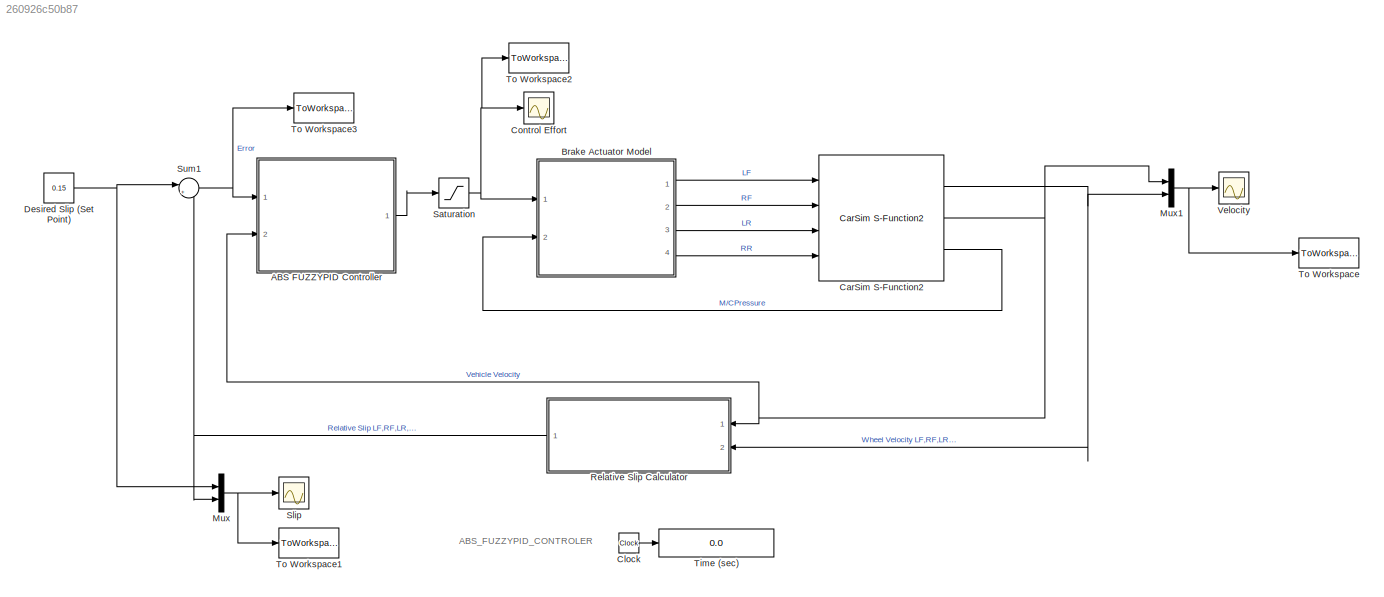
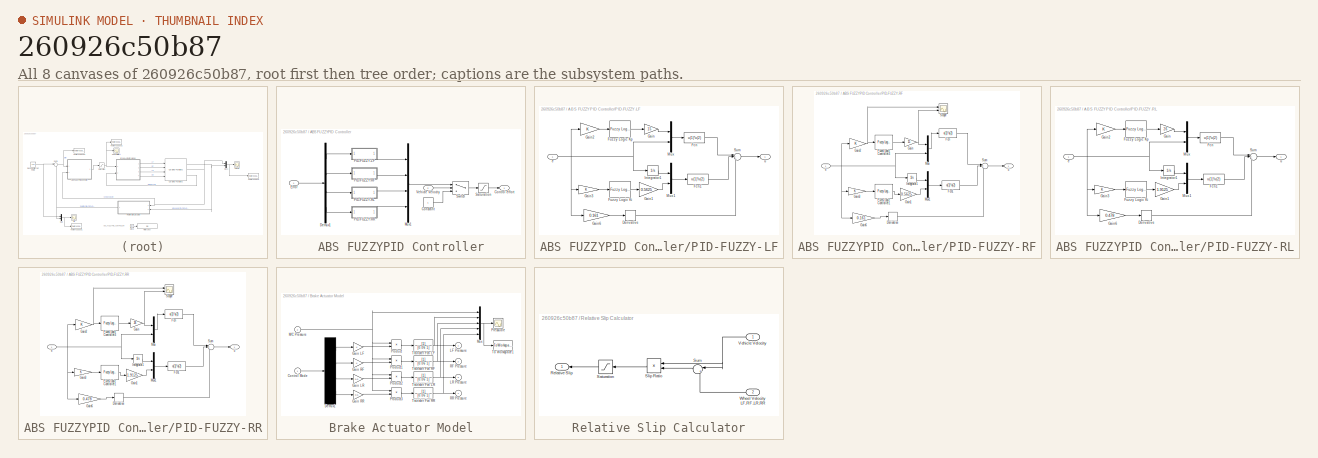
[diagram: thumbnail index - all 8 canvases of the model, root first then tree order]
MODEL slx_260926c50b87
KIND model
BLOCK [SubSystem] ABS FUZZYPID Controller
  Ports = [2, 1]
  RequestExecContextInheritance = off
BLOCK [Constant] ABS FUZZYPID Controller/Constant
BLOCK [Outport] ABS FUZZYPID Controller/Control effort
  IconDisplay = Port number
BLOCK [Demux] ABS FUZZYPID Controller/Demux1
  Ports = [1, 4]
BLOCK [Inport] ABS FUZZYPID Controller/Error
  IconDisplay = Port number
BLOCK [Mux] ABS FUZZYPID Controller/Mux1
  DisplayOption = bar
  Ports = [4, 1]
BLOCK [SubSystem] ABS FUZZYPID Controller/PID-FUZZY-LF
  Ports = [1, 1]
  RequestExecContextInheritance = off
BLOCK [Derivative] ABS FUZZYPID Controller/PID-FUZZY-LF/Derivative
BLOCK [Fcn] ABS FUZZYPID Controller/PID-FUZZY-LF/Fcn
  Expr = u(1)*u(2)
BLOCK [Fcn] ABS FUZZYPID Controller/PID-FUZZY-LF/Fcn1
  Expr = u(1)*u(2)
BLOCK [Reference] ABS FUZZYPID Controller/PID-FUZZY-LF/Fuzzy Logic  Ki  REF=fuzblock/Fuzzy Logic   (lib defined in mdl_858b3b3e7478)
Controller
  Ports = [1, 1]
  SourceBlock = fuzblock/Fuzzy Logic \nController
  SourceType = FIS
  fis = 'ABS_FUZZY-LOGIC-0.15.fis'
BLOCK [Reference] ABS FUZZYPID Controller/PID-FUZZY-LF/Fuzzy Logic  Kp  REF=fuzblock/Fuzzy Logic   (lib defined in mdl_858b3b3e7478)
Controller
  Ports = [1, 1]
  SourceBlock = fuzblock/Fuzzy Logic \nController
  SourceType = FIS
  fis = 'ABS_FUZZY-LOGIC-0.15.fis'
BLOCK [Gain] ABS FUZZYPID Controller/PID-FUZZY-LF/Gain
  Gain = 15
  OutDataTypeStr = Inherit: Inherit via internal rule
  ParamDataTypeStr = Inherit: Inherit via internal rule
  SaturateOnIntegerOverflow = off
BLOCK [Gain] ABS FUZZYPID Controller/PID-FUZZY-LF/Gain1
  Gain = 0.5625
  OutDataTypeStr = Inherit: Inherit via internal rule
  ParamDataTypeStr = Inherit: Inherit via internal rule
  SaturateOnIntegerOverflow = off
BLOCK [Gain] ABS FUZZYPID Controller/PID-FUZZY-LF/Gain2
  OutDataTypeStr = Inherit: Inherit via internal rule
  ParamDataTypeStr = Inherit: Inherit via internal rule
  SaturateOnIntegerOverflow = off
BLOCK [Gain] ABS FUZZYPID Controller/PID-FUZZY-LF/Gain3
  OutDataTypeStr = Inherit: Inherit via internal rule
  ParamDataTypeStr = Inherit: Inherit via internal rule
  SaturateOnIntegerOverflow = off
BLOCK [Gain] ABS FUZZYPID Controller/PID-FUZZY-LF/Gain6
  Gain = 0.161
  OutDataTypeStr = Inherit: Inherit via internal rule
  ParamDataTypeStr = Inherit: Inherit via internal rule
  SaturateOnIntegerOverflow = off
BLOCK [Integrator] ABS FUZZYPID Controller/PID-FUZZY-LF/Integrator1
  Ports = [1, 1]
BLOCK [Mux] ABS FUZZYPID Controller/PID-FUZZY-LF/Mux
  DisplayOption = bar
  Inputs = 2
  Ports = [2, 1]
BLOCK [Mux] ABS FUZZYPID Controller/PID-FUZZY-LF/Mux1
  DisplayOption = bar
  Inputs = 2
  Ports = [2, 1]
BLOCK [Sum] ABS FUZZYPID Controller/PID-FUZZY-LF/Sum
  IconShape = round
  InputSameDT = off
  Inputs = |+++
  OutDataTypeStr = Inherit: Inherit via internal rule
  Ports = [3, 1]
  SaturateOnIntegerOverflow = off
BLOCK [Inport] ABS FUZZYPID Controller/PID-FUZZY-LF/e
  IconDisplay = Port number
BLOCK [Outport] ABS FUZZYPID Controller/PID-FUZZY-LF/u
  IconDisplay = Port number
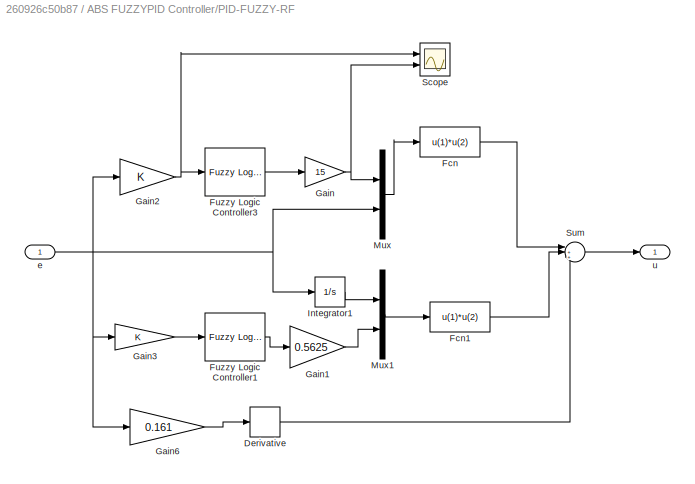
BLOCK [SubSystem] ABS FUZZYPID Controller/PID-FUZZY-RF
  Ports = [1, 1]
  RequestExecContextInheritance = off
BLOCK [Derivative] ABS FUZZYPID Controller/PID-FUZZY-RF/Derivative
BLOCK [Fcn] ABS FUZZYPID Controller/PID-FUZZY-RF/Fcn
  Expr = u(1)*u(2)
BLOCK [Fcn] ABS FUZZYPID Controller/PID-FUZZY-RF/Fcn1
  Expr = u(1)*u(2)
BLOCK [Reference] ABS FUZZYPID Controller/PID-FUZZY-RF/Fuzzy Logic  Controller1  REF=fuzblock/Fuzzy Logic   (lib defined in mdl_858b3b3e7478)
Controller
  Ports = [1, 1]
  SourceBlock = fuzblock/Fuzzy Logic \nController
  SourceType = FIS
  fis = 'ABS_FUZZY-LOGIC-0.15.fis'
BLOCK [Reference] ABS FUZZYPID Controller/PID-FUZZY-RF/Fuzzy Logic  Controller3  REF=fuzblock/Fuzzy Logic   (lib defined in mdl_858b3b3e7478)
Controller
  Ports = [1, 1]
  SourceBlock = fuzblock/Fuzzy Logic \nController
  SourceType = FIS
  fis = 'ABS_FUZZY-LOGIC-0.15.fis'
BLOCK [Gain] ABS FUZZYPID Controller/PID-FUZZY-RF/Gain
  Gain = 15
  OutDataTypeStr = Inherit: Inherit via internal rule
  ParamDataTypeStr = Inherit: Inherit via internal rule
  SaturateOnIntegerOverflow = off
BLOCK [Gain] ABS FUZZYPID Controller/PID-FUZZY-RF/Gain1
  Gain = 0.5625
  OutDataTypeStr = Inherit: Inherit via internal rule
  ParamDataTypeStr = Inherit: Inherit via internal rule
  SaturateOnIntegerOverflow = off
BLOCK [Gain] ABS FUZZYPID Controller/PID-FUZZY-RF/Gain2
  OutDataTypeStr = Inherit: Inherit via internal rule
  ParamDataTypeStr = Inherit: Inherit via internal rule
  SaturateOnIntegerOverflow = off
BLOCK [Gain] ABS FUZZYPID Controller/PID-FUZZY-RF/Gain3
  OutDataTypeStr = Inherit: Inherit via internal rule
  ParamDataTypeStr = Inherit: Inherit via internal rule
  SaturateOnIntegerOverflow = off
BLOCK [Gain] ABS FUZZYPID Controller/PID-FUZZY-RF/Gain6
  Gain = 0.161
  OutDataTypeStr = Inherit: Inherit via internal rule
  ParamDataTypeStr = Inherit: Inherit via internal rule
  SaturateOnIntegerOverflow = off
BLOCK [Integrator] ABS FUZZYPID Controller/PID-FUZZY-RF/Integrator1
  Ports = [1, 1]
BLOCK [Mux] ABS FUZZYPID Controller/PID-FUZZY-RF/Mux
  DisplayOption = bar
  Inputs = 2
  Ports = [2, 1]
BLOCK [Mux] ABS FUZZYPID Controller/PID-FUZZY-RF/Mux1
  DisplayOption = bar
  Inputs = 2
  Ports = [2, 1]
BLOCK [Scope] ABS FUZZYPID Controller/PID-FUZZY-RF/Scope
  Floating = off
  LimitDataPoints = off
  NumInputPorts = 2
  Ports = [2]
  SaveName = ScopeData8
  ShowLegends = off
  YMax = 5~5
  YMin = -5~-5
BLOCK [Sum] ABS FUZZYPID Controller/PID-FUZZY-RF/Sum
  IconShape = round
  InputSameDT = off
  Inputs = |+++
  OutDataTypeStr = Inherit: Inherit via internal rule
  Ports = [3, 1]
  SaturateOnIntegerOverflow = off
BLOCK [Inport] ABS FUZZYPID Controller/PID-FUZZY-RF/e
  IconDisplay = Port number
BLOCK [Outport] ABS FUZZYPID Controller/PID-FUZZY-RF/u
  IconDisplay = Port number
BLOCK [SubSystem] ABS FUZZYPID Controller/PID-FUZZY-RL
  Ports = [1, 1]
  RequestExecContextInheritance = off
BLOCK [Derivative] ABS FUZZYPID Controller/PID-FUZZY-RL/Derivative
BLOCK [Fcn] ABS FUZZYPID Controller/PID-FUZZY-RL/Fcn
  Expr = u(1)*u(2)
BLOCK [Fcn] ABS FUZZYPID Controller/PID-FUZZY-RL/Fcn1
  Expr = u(1)*u(2)
BLOCK [Reference] ABS FUZZYPID Controller/PID-FUZZY-RL/Fuzzy Logic  Ki  REF=fuzblock/Fuzzy Logic   (lib defined in mdl_858b3b3e7478)
Controller
  Ports = [1, 1]
  SourceBlock = fuzblock/Fuzzy Logic \nController
  SourceType = FIS
  fis = 'ABS_FUZZY-LOGIC-0.15.fis'
BLOCK [Reference] ABS FUZZYPID Controller/PID-FUZZY-RL/Fuzzy Logic  Kp  REF=fuzblock/Fuzzy Logic   (lib defined in mdl_858b3b3e7478)
Controller
  Ports = [1, 1]
  SourceBlock = fuzblock/Fuzzy Logic \nController
  SourceType = FIS
  fis = 'ABS_FUZZY-LOGIC-0.15.fis'
BLOCK [Gain] ABS FUZZYPID Controller/PID-FUZZY-RL/Gain
  Gain = 26
  OutDataTypeStr = Inherit: Inherit via internal rule
  ParamDataTypeStr = Inherit: Inherit via internal rule
  SaturateOnIntegerOverflow = off
BLOCK [Gain] ABS FUZZYPID Controller/PID-FUZZY-RL/Gain1
  Gain = 1.9125
  OutDataTypeStr = Inherit: Inherit via internal rule
  ParamDataTypeStr = Inherit: Inherit via internal rule
  SaturateOnIntegerOverflow = off
BLOCK [Gain] ABS FUZZYPID Controller/PID-FUZZY-RL/Gain2
  OutDataTypeStr = Inherit: Inherit via internal rule
  ParamDataTypeStr = Inherit: Inherit via internal rule
  SaturateOnIntegerOverflow = off
BLOCK [Gain] ABS FUZZYPID Controller/PID-FUZZY-RL/Gain3
  OutDataTypeStr = Inherit: Inherit via internal rule
  ParamDataTypeStr = Inherit: Inherit via internal rule
  SaturateOnIntegerOverflow = off
BLOCK [Gain] ABS FUZZYPID Controller/PID-FUZZY-RL/Gain6
  Gain = 0.478
  OutDataTypeStr = Inherit: Inherit via internal rule
  ParamDataTypeStr = Inherit: Inherit via internal rule
  SaturateOnIntegerOverflow = off
BLOCK [Integrator] ABS FUZZYPID Controller/PID-FUZZY-RL/Integrator1
  Ports = [1, 1]
BLOCK [Mux] ABS FUZZYPID Controller/PID-FUZZY-RL/Mux
  DisplayOption = bar
  Inputs = 2
  Ports = [2, 1]
BLOCK [Mux] ABS FUZZYPID Controller/PID-FUZZY-RL/Mux1
  DisplayOption = bar
  Inputs = 2
  Ports = [2, 1]
BLOCK [Sum] ABS FUZZYPID Controller/PID-FUZZY-RL/Sum
  IconShape = round
  InputSameDT = off
  Inputs = |+++
  OutDataTypeStr = Inherit: Inherit via internal rule
  Ports = [3, 1]
  SaturateOnIntegerOverflow = off
BLOCK [Inport] ABS FUZZYPID Controller/PID-FUZZY-RL/e
  IconDisplay = Port number
BLOCK [Outport] ABS FUZZYPID Controller/PID-FUZZY-RL/u
  IconDisplay = Port number
BLOCK [SubSystem] ABS FUZZYPID Controller/PID-FUZZY-RR
  Ports = [1, 1]
  RequestExecContextInheritance = off
BLOCK [Derivative] ABS FUZZYPID Controller/PID-FUZZY-RR/Derivative
BLOCK [Fcn] ABS FUZZYPID Controller/PID-FUZZY-RR/Fcn
  Expr = u(1)*u(2)
BLOCK [Fcn] ABS FUZZYPID Controller/PID-FUZZY-RR/Fcn1
  Expr = u(1)*u(2)
BLOCK [Reference] ABS FUZZYPID Controller/PID-FUZZY-RR/Fuzzy Logic  Controller1  REF=fuzblock/Fuzzy Logic   (lib defined in mdl_858b3b3e7478)
Controller
  Ports = [1, 1]
  SourceBlock = fuzblock/Fuzzy Logic \nController
  SourceType = FIS
  fis = 'ABS_FUZZY-LOGIC-0.15.fis'
BLOCK [Reference] ABS FUZZYPID Controller/PID-FUZZY-RR/Fuzzy Logic  Controller3  REF=fuzblock/Fuzzy Logic   (lib defined in mdl_858b3b3e7478)
Controller
  Ports = [1, 1]
  SourceBlock = fuzblock/Fuzzy Logic \nController
  SourceType = FIS
  fis = 'ABS_FUZZY-LOGIC-0.15.fis'
BLOCK [Gain] ABS FUZZYPID Controller/PID-FUZZY-RR/Gain
  Gain = 26
  OutDataTypeStr = Inherit: Inherit via internal rule
  ParamDataTypeStr = Inherit: Inherit via internal rule
  SaturateOnIntegerOverflow = off
BLOCK [Gain] ABS FUZZYPID Controller/PID-FUZZY-RR/Gain1
  Gain = 1.9125
  OutDataTypeStr = Inherit: Inherit via internal rule
  ParamDataTypeStr = Inherit: Inherit via internal rule
  SaturateOnIntegerOverflow = off
BLOCK [Gain] ABS FUZZYPID Controller/PID-FUZZY-RR/Gain2
  OutDataTypeStr = Inherit: Inherit via internal rule
  ParamDataTypeStr = Inherit: Inherit via internal rule
  SaturateOnIntegerOverflow = off
BLOCK [Gain] ABS FUZZYPID Controller/PID-FUZZY-RR/Gain3
  OutDataTypeStr = Inherit: Inherit via internal rule
  ParamDataTypeStr = Inherit: Inherit via internal rule
  SaturateOnIntegerOverflow = off
BLOCK [Gain] ABS FUZZYPID Controller/PID-FUZZY-RR/Gain6
  Gain = 0.478
  OutDataTypeStr = Inherit: Inherit via internal rule
  ParamDataTypeStr = Inherit: Inherit via internal rule
  SaturateOnIntegerOverflow = off
BLOCK [Integrator] ABS FUZZYPID Controller/PID-FUZZY-RR/Integrator1
  Ports = [1, 1]
BLOCK [Mux] ABS FUZZYPID Controller/PID-FUZZY-RR/Mux
  DisplayOption = bar
  Inputs = 2
  Ports = [2, 1]
BLOCK [Mux] ABS FUZZYPID Controller/PID-FUZZY-RR/Mux1
  DisplayOption = bar
  Inputs = 2
  Ports = [2, 1]
BLOCK [Scope] ABS FUZZYPID Controller/PID-FUZZY-RR/Scope
  Floating = off
  LimitDataPoints = off
  NumInputPorts = 2
  Ports = [2]
  SaveName = ScopeData8
  ShowLegends = off
  YMax = 5~5
  YMin = -5~-5
BLOCK [Sum] ABS FUZZYPID Controller/PID-FUZZY-RR/Sum
  IconShape = round
  InputSameDT = off
  Inputs = |+++
  OutDataTypeStr = Inherit: Inherit via internal rule
  Ports = [3, 1]
  SaturateOnIntegerOverflow = off
BLOCK [Inport] ABS FUZZYPID Controller/PID-FUZZY-RR/e
  IconDisplay = Port number
BLOCK [Outport] ABS FUZZYPID Controller/PID-FUZZY-RR/u
  IconDisplay = Port number
BLOCK [Saturate] ABS FUZZYPID Controller/Saturation
  InputPortMap = u0
  LowerLimit = 0
  Ports = [1, 1]
  UpperLimit = 1
BLOCK [Switch] ABS FUZZYPID Controller/Switch
  Criteria = u2 > Threshold
  InputSameDT = off
  SaturateOnIntegerOverflow = off
  Threshold = 3
BLOCK [Inport] ABS FUZZYPID Controller/Vehicle Velocity
  IconDisplay = Port number
  Port = 2
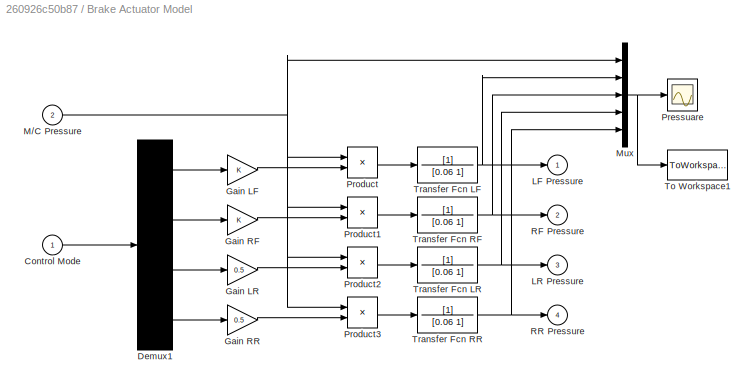
BLOCK [SubSystem] Brake Actuator Model
  Ports = [2, 4]
  RequestExecContextInheritance = off
BLOCK [Inport] Brake Actuator Model/Control Mode
  IconDisplay = Port number
BLOCK [Demux] Brake Actuator Model/Demux1
  Ports = [1, 4]
BLOCK [Gain] Brake Actuator Model/Gain LF
BLOCK [Gain] Brake Actuator Model/Gain LR
  Gain = 0.5
BLOCK [Gain] Brake Actuator Model/Gain RF
BLOCK [Gain] Brake Actuator Model/Gain RR
  Gain = 0.5
BLOCK [Outport] Brake Actuator Model/LF Pressure
  IconDisplay = Port number
  InitialOutput = 0
BLOCK [Outport] Brake Actuator Model/LR Pressure
  IconDisplay = Port number
  InitialOutput = 0
  Port = 3
BLOCK [Inport] Brake Actuator Model/M//C Pressure
  IconDisplay = Port number
  Port = 2
BLOCK [Mux] Brake Actuator Model/Mux
  DisplayOption = bar
  Inputs = 5
  Ports = [5, 1]
BLOCK [Scope] Brake Actuator Model/Pressuare
  Floating = off
  LimitDataPoints = off
  NumInputPorts = 1
  Ports = [1]
  SaveName = ScopeData9
  ShowLegends = on
BLOCK [Product] Brake Actuator Model/Product
  Ports = [2, 1]
  RndMeth = Floor
BLOCK [Product] Brake Actuator Model/Product1
  Ports = [2, 1]
  RndMeth = Floor
BLOCK [Product] Brake Actuator Model/Product2
  Ports = [2, 1]
  RndMeth = Floor
BLOCK [Product] Brake Actuator Model/Product3
  Ports = [2, 1]
  RndMeth = Floor
BLOCK [Outport] Brake Actuator Model/RF Pressure
  IconDisplay = Port number
  InitialOutput = 0
  Port = 2
BLOCK [Outport] Brake Actuator Model/RR Pressure
  IconDisplay = Port number
  InitialOutput = 0
  Port = 4
BLOCK [ToWorkspace] Brake Actuator Model/To Workspace1
  FixptAsFi = on
  MaxDataPoints = inf
  Ports = [1]
  SampleTime = 0.002
  Save2DSignal = 3-D array (concatenate along third dimension)
  SaveFormat = Timeseries
  VariableName = P
BLOCK [TransferFcn] Brake Actuator Model/Transfer Fcn LF
  Denominator = [0.06 1]
BLOCK [TransferFcn] Brake Actuator Model/Transfer Fcn LR
  Denominator = [0.06 1]
BLOCK [TransferFcn] Brake Actuator Model/Transfer Fcn RF
  Denominator = [0.06 1]
BLOCK [TransferFcn] Brake Actuator Model/Transfer Fcn RR
  Denominator = [0.06 1]
BLOCK [Reference] CarSim S-Function2  REF=Solver_SF/CarSim S-Function2
  AttributesFormatString = Vehicle Code: %<VehicleCode>
  Ports = [4, 3]
  Priority = 1
  SIMFILE = simfile.sim
  SourceBlock = Solver_SF/CarSim S-Function2
  SourceType = Vehicle math model library
  VehicleCode = i_i
BLOCK [Clock] Clock
BLOCK [Scope] Control Effort
  DataFormat = StructureWithTime
  Floating = off
  MaxDataPoints = 50000
  NumInputPorts = 1
  Ports = [1]
  SampleTime = 0
  SaveName = ScopeData10
  ShowLegends = on
  TimeRange = 7
  YMax = 1
  YMin = 0
BLOCK [Constant] Desired Slip (Set Point) 
  Value = 0.15
BLOCK [Mux] Mux
  DisplayOption = bar
  Inputs = 2
  Ports = [2, 1]
BLOCK [Mux] Mux1
  DisplayOption = bar
  Inputs = 2
  Ports = [2, 1]
BLOCK [SubSystem] Relative Slip Calculator
  Ports = [2, 1]
  RequestExecContextInheritance = off
BLOCK [Outport] Relative Slip Calculator/Relative Slip
  IconDisplay = Port number
BLOCK [Saturate] Relative Slip Calculator/Saturation
  InputPortMap = u0
  LowerLimit = 0
  Ports = [1, 1]
  UpperLimit = 1
BLOCK [Product] Relative Slip Calculator/Slip Ratio
  Inputs = /*
  Ports = [2, 1]
  RndMeth = Floor
BLOCK [Sum] Relative Slip Calculator/Sum
  IconShape = round
  InputSameDT = off
  Inputs = |+-
  OutDataTypeStr = Inherit: Inherit via internal rule
  Ports = [2, 1]
  SaturateOnIntegerOverflow = off
BLOCK [Inport] Relative Slip Calculator/Vehicle Velocity
  IconDisplay = Port number
BLOCK [Inport] Relative Slip Calculator/Wheel Velocity LF,RF,LR,RR
  IconDisplay = Port number
  Port = 2
BLOCK [Saturate] Saturation
  InputPortMap = u0
  LowerLimit = 0
  Ports = [1, 1]
  UpperLimit = 1
BLOCK [Scope] Slip
  DataFormat = StructureWithTime
  Floating = off
  MaxDataPoints = 50000
  NumInputPorts = 1
  Ports = [1]
  SampleTime = 0
  ShowLegends = off
  TimeRange = 6
  YMax = 1
  YMin = 0
BLOCK [Sum] Sum1
  IconShape = round
  InputSameDT = off
  Inputs = |+-
  OutDataTypeStr = Inherit: Inherit via internal rule
  Ports = [2, 1]
  SaturateOnIntegerOverflow = off
BLOCK [Display] Time (sec)
  Decimation = 100
  Format = bank
  Ports = [1]
BLOCK [ToWorkspace] To Workspace
  FixptAsFi = on
  MaxDataPoints = inf
  Ports = [1]
  SampleTime = 0.002
  Save2DSignal = 3-D array (concatenate along third dimension)
  SaveFormat = Timeseries
  VariableName = V
BLOCK [ToWorkspace] To Workspace1
  FixptAsFi = on
  MaxDataPoints = inf
  Ports = [1]
  SampleTime = 0.002
  Save2DSignal = 3-D array (concatenate along third dimension)
  SaveFormat = Timeseries
  VariableName = S
BLOCK [ToWorkspace] To Workspace2
  FixptAsFi = on
  MaxDataPoints = inf
  Ports = [1]
  SampleTime = 0.002
  Save2DSignal = 3-D array (concatenate along third dimension)
  SaveFormat = Timeseries
  VariableName = U
BLOCK [ToWorkspace] To Workspace3
  FixptAsFi = on
  MaxDataPoints = inf
  Ports = [1]
  SampleTime = 0.002
  Save2DSignal = 3-D array (concatenate along third dimension)
  SaveFormat = Timeseries
  VariableName = E
BLOCK [Scope] Velocity
  DataFormat = StructureWithTime
  Floating = off
  MaxDataPoints = 50000
  NumInputPorts = 1
  Ports = [1]
  SampleTime = 0
  SaveName = ScopeData1
  ShowLegends = on
  YMax = 65
ANNOTATION (root): ABS_FUZZYPID_CONTROLER
LINE ABS FUZZYPID Controller/Constant:1 -> ABS FUZZYPID Controller/Switch:3
LINE ABS FUZZYPID Controller/Demux1:1 -> ABS FUZZYPID Controller/PID-FUZZY-LF:1
LINE ABS FUZZYPID Controller/Demux1:2 -> ABS FUZZYPID Controller/PID-FUZZY-RF:1
LINE ABS FUZZYPID Controller/Demux1:3 -> ABS FUZZYPID Controller/PID-FUZZY-RL:1
LINE ABS FUZZYPID Controller/Demux1:4 -> ABS FUZZYPID Controller/PID-FUZZY-RR:1
LINE ABS FUZZYPID Controller/Error:1 -> ABS FUZZYPID Controller/Demux1:1
LINE ABS FUZZYPID Controller/Mux1:1 -> ABS FUZZYPID Controller/Switch:1
LINE ABS FUZZYPID Controller/PID-FUZZY-LF/Derivative:1 -> ABS FUZZYPID Controller/PID-FUZZY-LF/Sum:3
LINE ABS FUZZYPID Controller/PID-FUZZY-LF/Fcn1:1 -> ABS FUZZYPID Controller/PID-FUZZY-LF/Sum:2
LINE ABS FUZZYPID Controller/PID-FUZZY-LF/Fcn:1 -> ABS FUZZYPID Controller/PID-FUZZY-LF/Sum:1
LINE ABS FUZZYPID Controller/PID-FUZZY-LF/Fuzzy Logic  Ki:1 -> ABS FUZZYPID Controller/PID-FUZZY-LF/Gain1:1
LINE ABS FUZZYPID Controller/PID-FUZZY-LF/Fuzzy Logic  Kp:1 -> ABS FUZZYPID Controller/PID-FUZZY-LF/Gain:1
LINE ABS FUZZYPID Controller/PID-FUZZY-LF/Gain1:1 -> ABS FUZZYPID Controller/PID-FUZZY-LF/Mux1:2
LINE ABS FUZZYPID Controller/PID-FUZZY-LF/Gain2:1 -> ABS FUZZYPID Controller/PID-FUZZY-LF/Fuzzy Logic  Kp:1
LINE ABS FUZZYPID Controller/PID-FUZZY-LF/Gain3:1 -> ABS FUZZYPID Controller/PID-FUZZY-LF/Fuzzy Logic  Ki:1
LINE ABS FUZZYPID Controller/PID-FUZZY-LF/Gain6:1 -> ABS FUZZYPID Controller/PID-FUZZY-LF/Derivative:1
LINE ABS FUZZYPID Controller/PID-FUZZY-LF/Gain:1 -> ABS FUZZYPID Controller/PID-FUZZY-LF/Mux:1
LINE ABS FUZZYPID Controller/PID-FUZZY-LF/Integrator1:1 -> ABS FUZZYPID Controller/PID-FUZZY-LF/Mux1:1
LINE ABS FUZZYPID Controller/PID-FUZZY-LF/Mux1:1 -> ABS FUZZYPID Controller/PID-FUZZY-LF/Fcn1:1
LINE ABS FUZZYPID Controller/PID-FUZZY-LF/Mux:1 -> ABS FUZZYPID Controller/PID-FUZZY-LF/Fcn:1
LINE ABS FUZZYPID Controller/PID-FUZZY-LF/Sum:1 -> ABS FUZZYPID Controller/PID-FUZZY-LF/u:1
NET ABS FUZZYPID Controller/PID-FUZZY-LF/e:1 -> ABS FUZZYPID Controller/PID-FUZZY-LF/Gain2:1, ABS FUZZYPID Controller/PID-FUZZY-LF/Gain3:1, ABS FUZZYPID Controller/PID-FUZZY-LF/Gain6:1, ABS FUZZYPID Controller/PID-FUZZY-LF/Integrator1:1, ABS FUZZYPID Controller/PID-FUZZY-LF/Mux:2
LINE ABS FUZZYPID Controller/PID-FUZZY-LF:1 -> ABS FUZZYPID Controller/Mux1:1
LINE ABS FUZZYPID Controller/PID-FUZZY-RF/Derivative:1 -> ABS FUZZYPID Controller/PID-FUZZY-RF/Sum:3
LINE ABS FUZZYPID Controller/PID-FUZZY-RF/Fcn1:1 -> ABS FUZZYPID Controller/PID-FUZZY-RF/Sum:2
LINE ABS FUZZYPID Controller/PID-FUZZY-RF/Fcn:1 -> ABS FUZZYPID Controller/PID-FUZZY-RF/Sum:1
LINE ABS FUZZYPID Controller/PID-FUZZY-RF/Fuzzy Logic  Controller1:1 -> ABS FUZZYPID Controller/PID-FUZZY-RF/Gain1:1
LINE ABS FUZZYPID Controller/PID-FUZZY-RF/Fuzzy Logic  Controller3:1 -> ABS FUZZYPID Controller/PID-FUZZY-RF/Gain:1
LINE ABS FUZZYPID Controller/PID-FUZZY-RF/Gain1:1 -> ABS FUZZYPID Controller/PID-FUZZY-RF/Mux1:2
NET ABS FUZZYPID Controller/PID-FUZZY-RF/Gain2:1 -> ABS FUZZYPID Controller/PID-FUZZY-RF/Fuzzy Logic  Controller3:1, ABS FUZZYPID Controller/PID-FUZZY-RF/Scope:1
LINE ABS FUZZYPID Controller/PID-FUZZY-RF/Gain3:1 -> ABS FUZZYPID Controller/PID-FUZZY-RF/Fuzzy Logic  Controller1:1
LINE ABS FUZZYPID Controller/PID-FUZZY-RF/Gain6:1 -> ABS FUZZYPID Controller/PID-FUZZY-RF/Derivative:1
NET ABS FUZZYPID Controller/PID-FUZZY-RF/Gain:1 -> ABS FUZZYPID Controller/PID-FUZZY-RF/Mux:1, ABS FUZZYPID Controller/PID-FUZZY-RF/Scope:2
LINE ABS FUZZYPID Controller/PID-FUZZY-RF/Integrator1:1 -> ABS FUZZYPID Controller/PID-FUZZY-RF/Mux1:1
LINE ABS FUZZYPID Controller/PID-FUZZY-RF/Mux1:1 -> ABS FUZZYPID Controller/PID-FUZZY-RF/Fcn1:1
LINE ABS FUZZYPID Controller/PID-FUZZY-RF/Mux:1 -> ABS FUZZYPID Controller/PID-FUZZY-RF/Fcn:1
LINE ABS FUZZYPID Controller/PID-FUZZY-RF/Sum:1 -> ABS FUZZYPID Controller/PID-FUZZY-RF/u:1
NET ABS FUZZYPID Controller/PID-FUZZY-RF/e:1 -> ABS FUZZYPID Controller/PID-FUZZY-RF/Gain2:1, ABS FUZZYPID Controller/PID-FUZZY-RF/Gain3:1, ABS FUZZYPID Controller/PID-FUZZY-RF/Gain6:1, ABS FUZZYPID Controller/PID-FUZZY-RF/Integrator1:1, ABS FUZZYPID Controller/PID-FUZZY-RF/Mux:2
LINE ABS FUZZYPID Controller/PID-FUZZY-RF:1 -> ABS FUZZYPID Controller/Mux1:2
LINE ABS FUZZYPID Controller/PID-FUZZY-RL/Derivative:1 -> ABS FUZZYPID Controller/PID-FUZZY-RL/Sum:3
LINE ABS FUZZYPID Controller/PID-FUZZY-RL/Fcn1:1 -> ABS FUZZYPID Controller/PID-FUZZY-RL/Sum:2
LINE ABS FUZZYPID Controller/PID-FUZZY-RL/Fcn:1 -> ABS FUZZYPID Controller/PID-FUZZY-RL/Sum:1
LINE ABS FUZZYPID Controller/PID-FUZZY-RL/Fuzzy Logic  Ki:1 -> ABS FUZZYPID Controller/PID-FUZZY-RL/Gain1:1
LINE ABS FUZZYPID Controller/PID-FUZZY-RL/Fuzzy Logic  Kp:1 -> ABS FUZZYPID Controller/PID-FUZZY-RL/Gain:1
LINE ABS FUZZYPID Controller/PID-FUZZY-RL/Gain1:1 -> ABS FUZZYPID Controller/PID-FUZZY-RL/Mux1:2
LINE ABS FUZZYPID Controller/PID-FUZZY-RL/Gain2:1 -> ABS FUZZYPID Controller/PID-FUZZY-RL/Fuzzy Logic  Kp:1
LINE ABS FUZZYPID Controller/PID-FUZZY-RL/Gain3:1 -> ABS FUZZYPID Controller/PID-FUZZY-RL/Fuzzy Logic  Ki:1
LINE ABS FUZZYPID Controller/PID-FUZZY-RL/Gain6:1 -> ABS FUZZYPID Controller/PID-FUZZY-RL/Derivative:1
LINE ABS FUZZYPID Controller/PID-FUZZY-RL/Gain:1 -> ABS FUZZYPID Controller/PID-FUZZY-RL/Mux:1
LINE ABS FUZZYPID Controller/PID-FUZZY-RL/Integrator1:1 -> ABS FUZZYPID Controller/PID-FUZZY-RL/Mux1:1
LINE ABS FUZZYPID Controller/PID-FUZZY-RL/Mux1:1 -> ABS FUZZYPID Controller/PID-FUZZY-RL/Fcn1:1
LINE ABS FUZZYPID Controller/PID-FUZZY-RL/Mux:1 -> ABS FUZZYPID Controller/PID-FUZZY-RL/Fcn:1
LINE ABS FUZZYPID Controller/PID-FUZZY-RL/Sum:1 -> ABS FUZZYPID Controller/PID-FUZZY-RL/u:1
NET ABS FUZZYPID Controller/PID-FUZZY-RL/e:1 -> ABS FUZZYPID Controller/PID-FUZZY-RL/Gain2:1, ABS FUZZYPID Controller/PID-FUZZY-RL/Gain3:1, ABS FUZZYPID Controller/PID-FUZZY-RL/Gain6:1, ABS FUZZYPID Controller/PID-FUZZY-RL/Integrator1:1, ABS FUZZYPID Controller/PID-FUZZY-RL/Mux:2
LINE ABS FUZZYPID Controller/PID-FUZZY-RL:1 -> ABS FUZZYPID Controller/Mux1:3
LINE ABS FUZZYPID Controller/PID-FUZZY-RR/Derivative:1 -> ABS FUZZYPID Controller/PID-FUZZY-RR/Sum:3
LINE ABS FUZZYPID Controller/PID-FUZZY-RR/Fcn1:1 -> ABS FUZZYPID Controller/PID-FUZZY-RR/Sum:2
LINE ABS FUZZYPID Controller/PID-FUZZY-RR/Fcn:1 -> ABS FUZZYPID Controller/PID-FUZZY-RR/Sum:1
LINE ABS FUZZYPID Controller/PID-FUZZY-RR/Fuzzy Logic  Controller1:1 -> ABS FUZZYPID Controller/PID-FUZZY-RR/Gain1:1
LINE ABS FUZZYPID Controller/PID-FUZZY-RR/Fuzzy Logic  Controller3:1 -> ABS FUZZYPID Controller/PID-FUZZY-RR/Gain:1
LINE ABS FUZZYPID Controller/PID-FUZZY-RR/Gain1:1 -> ABS FUZZYPID Controller/PID-FUZZY-RR/Mux1:2
NET ABS FUZZYPID Controller/PID-FUZZY-RR/Gain2:1 -> ABS FUZZYPID Controller/PID-FUZZY-RR/Fuzzy Logic  Controller3:1, ABS FUZZYPID Controller/PID-FUZZY-RR/Scope:1
LINE ABS FUZZYPID Controller/PID-FUZZY-RR/Gain3:1 -> ABS FUZZYPID Controller/PID-FUZZY-RR/Fuzzy Logic  Controller1:1
LINE ABS FUZZYPID Controller/PID-FUZZY-RR/Gain6:1 -> ABS FUZZYPID Controller/PID-FUZZY-RR/Derivative:1
NET ABS FUZZYPID Controller/PID-FUZZY-RR/Gain:1 -> ABS FUZZYPID Controller/PID-FUZZY-RR/Mux:1, ABS FUZZYPID Controller/PID-FUZZY-RR/Scope:2
LINE ABS FUZZYPID Controller/PID-FUZZY-RR/Integrator1:1 -> ABS FUZZYPID Controller/PID-FUZZY-RR/Mux1:1
LINE ABS FUZZYPID Controller/PID-FUZZY-RR/Mux1:1 -> ABS FUZZYPID Controller/PID-FUZZY-RR/Fcn1:1
LINE ABS FUZZYPID Controller/PID-FUZZY-RR/Mux:1 -> ABS FUZZYPID Controller/PID-FUZZY-RR/Fcn:1
LINE ABS FUZZYPID Controller/PID-FUZZY-RR/Sum:1 -> ABS FUZZYPID Controller/PID-FUZZY-RR/u:1
NET ABS FUZZYPID Controller/PID-FUZZY-RR/e:1 -> ABS FUZZYPID Controller/PID-FUZZY-RR/Gain2:1, ABS FUZZYPID Controller/PID-FUZZY-RR/Gain3:1, ABS FUZZYPID Controller/PID-FUZZY-RR/Gain6:1, ABS FUZZYPID Controller/PID-FUZZY-RR/Integrator1:1, ABS FUZZYPID Controller/PID-FUZZY-RR/Mux:2
LINE ABS FUZZYPID Controller/PID-FUZZY-RR:1 -> ABS FUZZYPID Controller/Mux1:4
LINE ABS FUZZYPID Controller/Saturation:1 -> ABS FUZZYPID Controller/Control effort:1
LINE ABS FUZZYPID Controller/Switch:1 -> ABS FUZZYPID Controller/Saturation:1
LINE ABS FUZZYPID Controller/Vehicle Velocity:1 -> ABS FUZZYPID Controller/Switch:2
LINE ABS FUZZYPID Controller:1 -> Saturation:1
LINE Brake Actuator Model/Control Mode:1 -> Brake Actuator Model/Demux1:1
LINE Brake Actuator Model/Demux1:1 -> Brake Actuator Model/Gain LF:1
LINE Brake Actuator Model/Demux1:2 -> Brake Actuator Model/Gain RF:1
LINE Brake Actuator Model/Demux1:3 -> Brake Actuator Model/Gain LR:1
LINE Brake Actuator Model/Demux1:4 -> Brake Actuator Model/Gain RR:1
LINE Brake Actuator Model/Gain LF:1 -> Brake Actuator Model/Product:2
LINE Brake Actuator Model/Gain LR:1 -> Brake Actuator Model/Product2:2
LINE Brake Actuator Model/Gain RF:1 -> Brake Actuator Model/Product1:2
LINE Brake Actuator Model/Gain RR:1 -> Brake Actuator Model/Product3:2
NET Brake Actuator Model/M//C Pressure:1 -> Brake Actuator Model/Mux:1, Brake Actuator Model/Product1:1, Brake Actuator Model/Product2:1, Brake Actuator Model/Product3:1, Brake Actuator Model/Product:1
NET Brake Actuator Model/Mux:1 -> Brake Actuator Model/Pressuare:1, Brake Actuator Model/To Workspace1:1
LINE Brake Actuator Model/Product1:1 -> Brake Actuator Model/Transfer Fcn RF:1
LINE Brake Actuator Model/Product2:1 -> Brake Actuator Model/Transfer Fcn LR:1
LINE Brake Actuator Model/Product3:1 -> Brake Actuator Model/Transfer Fcn RR:1
LINE Brake Actuator Model/Product:1 -> Brake Actuator Model/Transfer Fcn LF:1
NET Brake Actuator Model/Transfer Fcn LF:1 -> Brake Actuator Model/LF Pressure:1, Brake Actuator Model/Mux:2
NET Brake Actuator Model/Transfer Fcn LR:1 -> Brake Actuator Model/LR Pressure:1, Brake Actuator Model/Mux:4
NET Brake Actuator Model/Transfer Fcn RF:1 -> Brake Actuator Model/Mux:3, Brake Actuator Model/RF Pressure:1
NET Brake Actuator Model/Transfer Fcn RR:1 -> Brake Actuator Model/Mux:5, Brake Actuator Model/RR Pressure:1
LINE Brake Actuator Model:1 -> CarSim S-Function2:1
LINE Brake Actuator Model:2 -> CarSim S-Function2:2
LINE Brake Actuator Model:3 -> CarSim S-Function2:3
LINE Brake Actuator Model:4 -> CarSim S-Function2:4
NET CarSim S-Function2:1 -> Mux1:2, Relative Slip Calculator:2
NET CarSim S-Function2:2 -> ABS FUZZYPID Controller:2, Mux1:1, Relative Slip Calculator:1
LINE CarSim S-Function2:3 -> Brake Actuator Model:2
LINE Clock:1 -> Time (sec):1
NET Desired Slip (Set Point) :1 -> Mux:1, Sum1:1
NET Mux1:1 -> To Workspace:1, Velocity:1
NET Mux:1 -> Slip:1, To Workspace1:1
LINE Relative Slip Calculator/Saturation:1 -> Relative Slip Calculator/Relative Slip:1
LINE Relative Slip Calculator/Slip Ratio:1 -> Relative Slip Calculator/Saturation:1
LINE Relative Slip Calculator/Sum:1 -> Relative Slip Calculator/Slip Ratio:2
NET Relative Slip Calculator/Vehicle Velocity:1 -> Relative Slip Calculator/Slip Ratio:1, Relative Slip Calculator/Sum:1
LINE Relative Slip Calculator/Wheel Velocity LF,RF,LR,RR:1 -> Relative Slip Calculator/Sum:2
NET Relative Slip Calculator:1 -> Mux:2, Sum1:2
NET Saturation:1 -> Brake Actuator Model:1, Control Effort:1, To Workspace2:1
NET Sum1:1 -> ABS FUZZYPID Controller:1, To Workspace3:1
note: NET lines group one-source signal fan-out (src -> all destinations, sorted); 1:1 wires keep LINE
